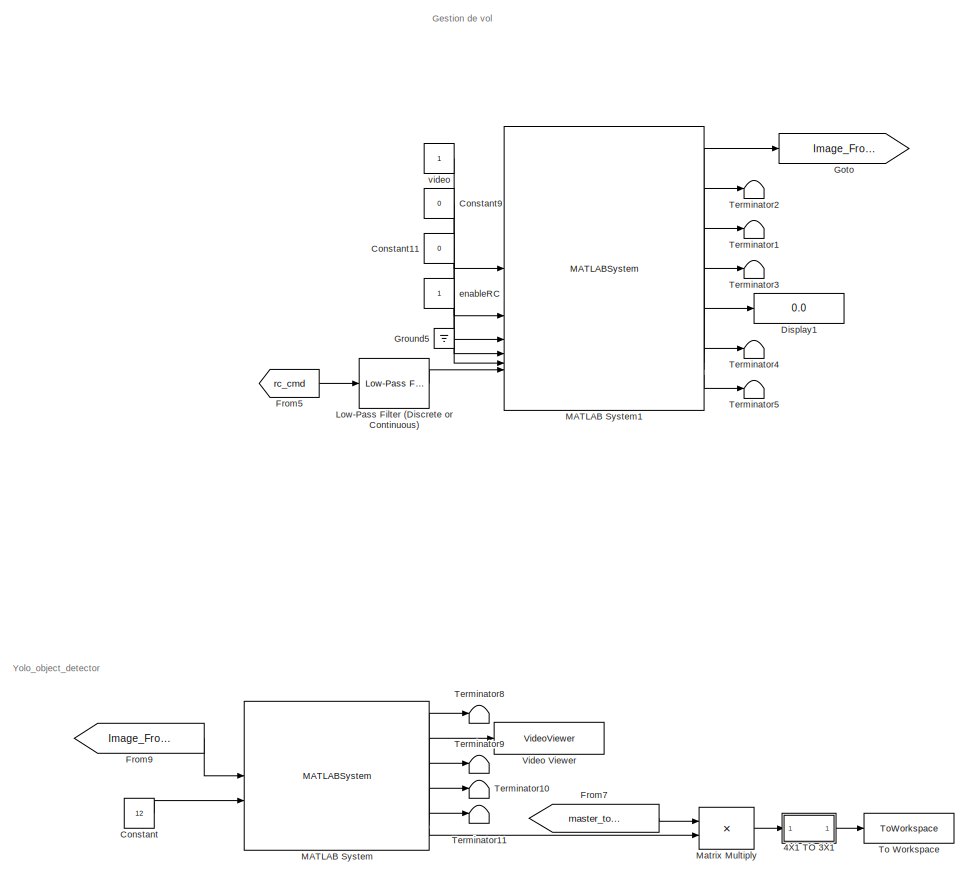
[diagram: root canvas - part 1/7, top center region]
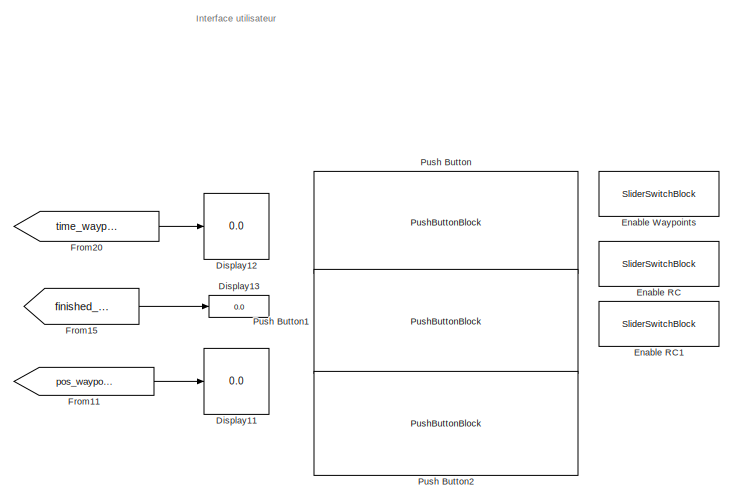
[diagram: root canvas - part 2/7, top left region]
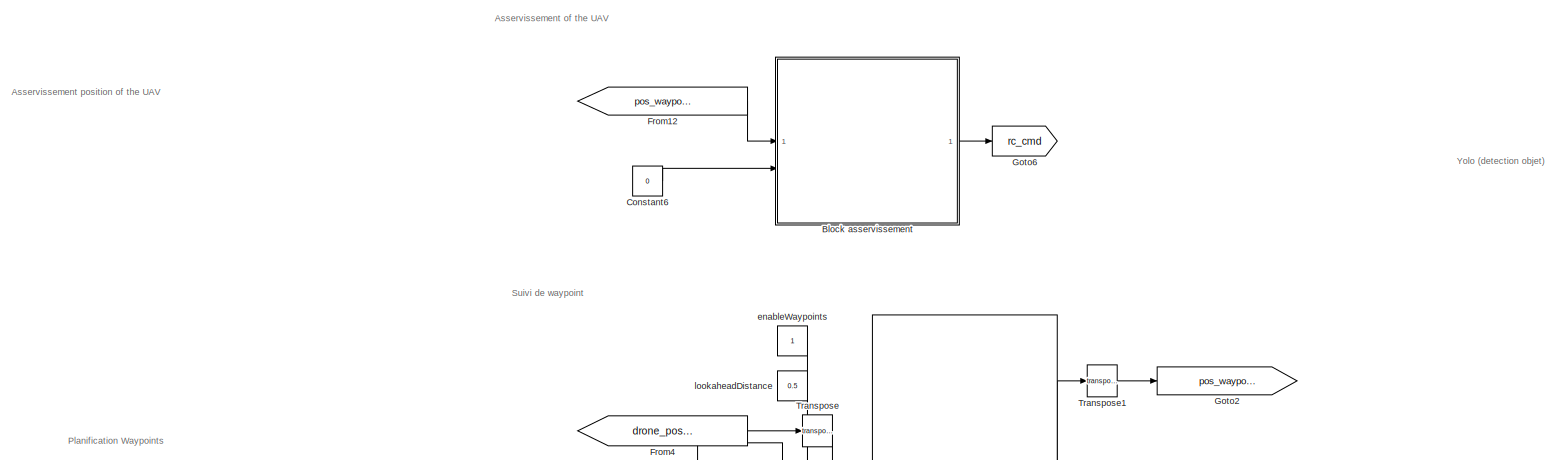
[diagram: root canvas - part 3/7, middle left region]
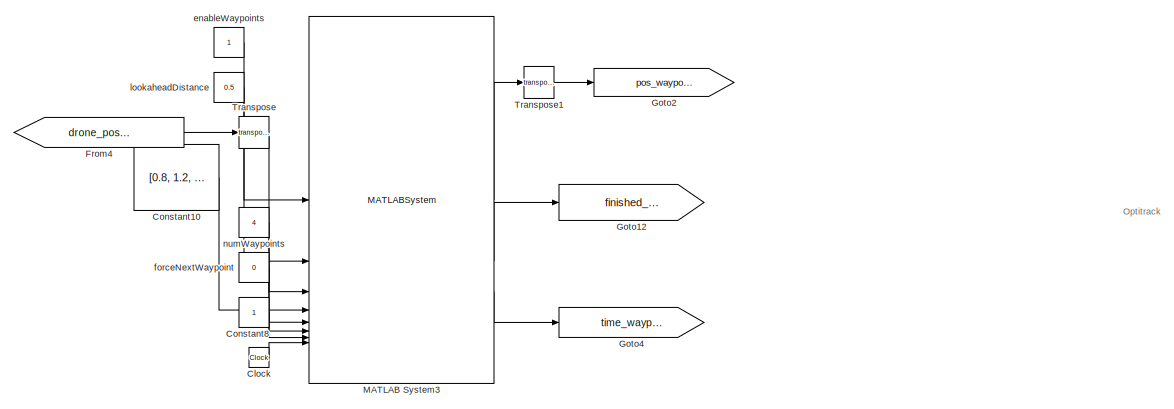
[diagram: root canvas - part 4/7, middle left region]
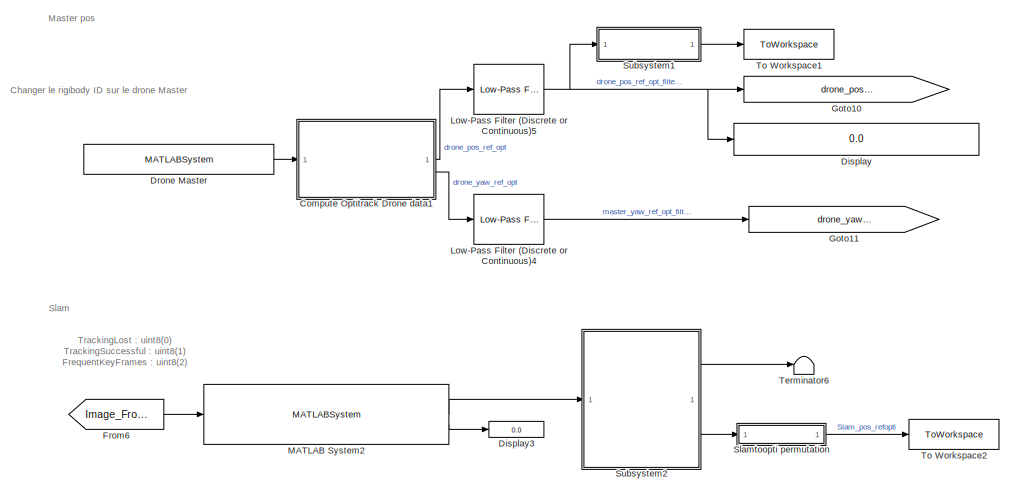
[diagram: root canvas - part 5/7, bottom center region]
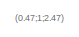
[diagram: root canvas - part 6/7, bottom right region]
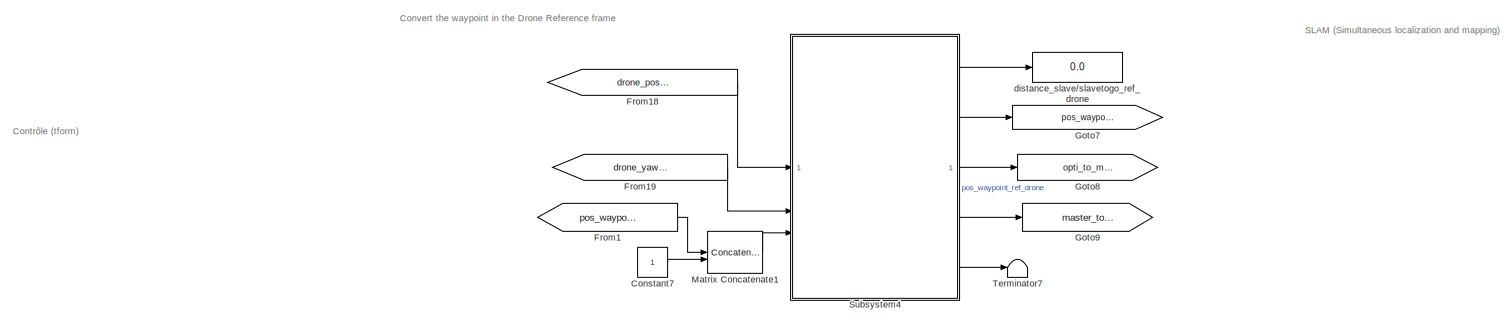
[diagram: root canvas - part 7/7, bottom left region]
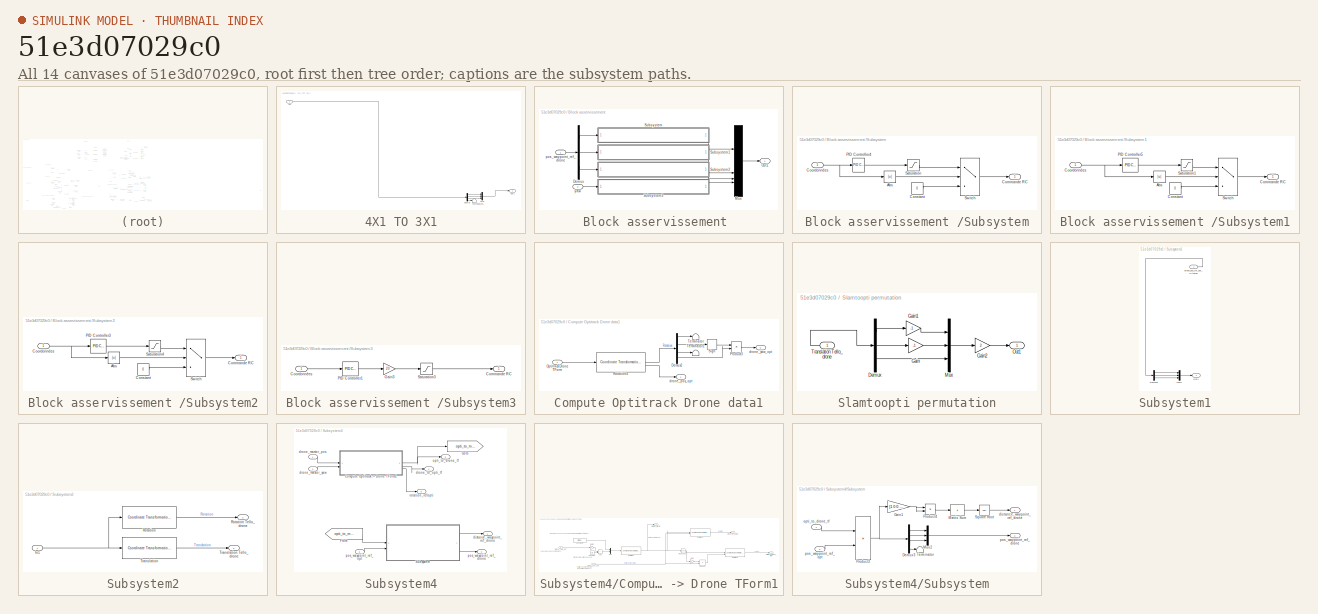
[diagram: thumbnail index - all 14 canvases of the model, root first then tree order]
MODEL slx_51e3d07029c0
KIND model
CONFIG AbsTol = auto
CONFIG EnableMultiTasking = off
CONFIG FixedStep = auto
CONFIG MaxStep = auto
CONFIG MinStep = auto
CONFIG RelTol = 1e-3
CONFIG SampleTimeConstraint = Unconstrained
CONFIG SolverName = VariableStepAuto
CONFIG StartTime = 0.0
CONFIG StopTime = inf
BLOCK [SubSystem] 4X1 TO 3X1
BLOCK [Demux] 4X1 TO 3X1/Demux
BLOCK [Inport] 4X1 TO 3X1/In1
BLOCK [Mux] 4X1 TO 3X1/Mux
  DisplayOption = bar
  Inputs = 3
BLOCK [Outport] 4X1 TO 3X1/Out1
BLOCK [Terminator] 4X1 TO 3X1/Terminator6
BLOCK [SubSystem] Block asservissement 
BLOCK [Demux] Block asservissement /Demux
  Outputs = 3
BLOCK [Mux] Block asservissement /Mux
  DisplayOption = bar
BLOCK [Outport] Block asservissement /Out1
BLOCK [SubSystem] Block asservissement /Subsystem
BLOCK [Abs] Block asservissement /Subsystem/Abs
  SaturateOnIntegerOverflow = off
BLOCK [Outport] Block asservissement /Subsystem/Commande RC
BLOCK [Constant] Block asservissement /Subsystem/Constant
  Value = 0
BLOCK [Inport] Block asservissement /Subsystem/Coordonnées
BLOCK [Reference] Block asservissement /Subsystem/PID Controller4  REF=slpidlib/PID Controller
  LibrarySourceBlock = simulink/Continuous/PID Controller
  SourceBlock = slpidlib/PID Controller
  SourceType = PID 1dof
BLOCK [Saturate] Block asservissement /Subsystem/Saturation
  LowerLimit = -20
  UpperLimit = 20
BLOCK [Switch] Block asservissement /Subsystem/Switch
  Criteria = u2 > Threshold
  InputSameDT = off
  SaturateOnIntegerOverflow = off
  Threshold = 0.1
BLOCK [SubSystem] Block asservissement /Subsystem1
BLOCK [Abs] Block asservissement /Subsystem1/Abs
  SaturateOnIntegerOverflow = off
BLOCK [Outport] Block asservissement /Subsystem1/Commande RC
BLOCK [Constant] Block asservissement /Subsystem1/Constant
  Value = 0
BLOCK [Inport] Block asservissement /Subsystem1/Coordonnées
BLOCK [Reference] Block asservissement /Subsystem1/PID Controller5  REF=slpidlib/PID Controller
  LibrarySourceBlock = simulink/Continuous/PID Controller
  SourceBlock = slpidlib/PID Controller
  SourceType = PID 1dof
BLOCK [Saturate] Block asservissement /Subsystem1/Saturation1
  LowerLimit = -20
  UpperLimit = 20
BLOCK [Switch] Block asservissement /Subsystem1/Switch
  Criteria = u2 > Threshold
  InputSameDT = off
  SaturateOnIntegerOverflow = off
  Threshold = 0.1
BLOCK [SubSystem] Block asservissement /Subsystem2
BLOCK [Abs] Block asservissement /Subsystem2/Abs
  SaturateOnIntegerOverflow = off
BLOCK [Outport] Block asservissement /Subsystem2/Commande RC
BLOCK [Constant] Block asservissement /Subsystem2/Constant
  Value = 0
BLOCK [Inport] Block asservissement /Subsystem2/Coordonnées
BLOCK [Reference] Block asservissement /Subsystem2/PID Controller3  REF=slpidlib/PID Controller
  LibrarySourceBlock = simulink/Continuous/PID Controller
  SourceBlock = slpidlib/PID Controller
  SourceType = PID 1dof
BLOCK [Saturate] Block asservissement /Subsystem2/Saturation4
  LowerLimit = -20
  UpperLimit = 20
BLOCK [Switch] Block asservissement /Subsystem2/Switch
  Criteria = u2 > Threshold
  InputSameDT = off
  SaturateOnIntegerOverflow = off
  Threshold = 0.1
BLOCK [SubSystem] Block asservissement /Subsystem3
BLOCK [Outport] Block asservissement /Subsystem3/Commande RC
BLOCK [Inport] Block asservissement /Subsystem3/Coordonnées
BLOCK [Gain] Block asservissement /Subsystem3/Gain3
  Gain = 20
BLOCK [Reference] Block asservissement /Subsystem3/PID Controller1  REF=slpidlib/PID Controller
  LibrarySourceBlock = simulink/Continuous/PID Controller
  SourceBlock = slpidlib/PID Controller
  SourceType = PID 1dof
BLOCK [Saturate] Block asservissement /Subsystem3/Saturation3
  LowerLimit = -50
  UpperLimit = 50
BLOCK [Inport] Block asservissement /pos_waypoint_ref_drone
BLOCK [Inport] Block asservissement /yaw
  Port = 2
BLOCK [Clock] Clock
BLOCK [SubSystem] Compute Optitrack Drone data1
BLOCK [Demux] Compute Optitrack Drone data1/Demux2
BLOCK [Inport] Compute Optitrack Drone data1/Optitrack Drone TForm
BLOCK [Product] Compute Optitrack Drone data1/Product3
BLOCK [Reference] Compute Optitrack Drone data1/Rotation4  REF=robotcorelib/Coordinate Transformation Conversion
  LibrarySourceBlock = uavutilslib/Coordinate Transformation Conversion
  SourceBlock = robotcorelib/Coordinate Transformation Conversion
  SourceType = robotics.slcore.internal.block.CoordinateTransformationConversion
BLOCK [Signum] Compute Optitrack Drone data1/Sign
BLOCK [Terminator] Compute Optitrack Drone data1/Terminator
BLOCK [Terminator] Compute Optitrack Drone data1/Terminator1
BLOCK [Outport] Compute Optitrack Drone data1/drone_pos_opt
BLOCK [Outport] Compute Optitrack Drone data1/drone_yaw_opt
  Port = 2
BLOCK [Constant] Constant
  Value = 12
BLOCK [Constant] Constant10
  Value = [0.8, 1.2, 0; 0,  1.2 ,0; -0.8 , 1.2 , 0; 0, 1.2,0]
BLOCK [Constant] Constant11
  Value = 0
BLOCK [Constant] Constant6
  Value = 0
BLOCK [Constant] Constant7
BLOCK [Constant] Constant8
BLOCK [Constant] Constant9
  Value = 0
BLOCK [Display] Display
  Decimation = 1
BLOCK [Display] Display1
  Decimation = 1
BLOCK [Display] Display11
  Decimation = 1
BLOCK [Display] Display12
  Decimation = 1
BLOCK [Display] Display13
  Decimation = 1
BLOCK [Display] Display3
  Decimation = 1
BLOCK [MATLABSystem] Drone Master
  ClientIP = 10.147.125.15
  HostIP = 10.147.125.15
  MaskDisplay = disp('OptilinkSystem');\nport_label('output',1,'Drones data');
  MaskType = OptilinkSystem
  RigidbodyID = 1
  SimulateUsing = Interpreted execution
  System = OptilinkSystem
BLOCK [SliderSwitchBlock] Enable RC
BLOCK [SliderSwitchBlock] Enable RC1
BLOCK [SliderSwitchBlock] Enable Waypoints
BLOCK [From] From1
  GotoTag = pos_waypoint_ref_opt
BLOCK [From] From11
  GotoTag = pos_waypoint_ref_opt
BLOCK [From] From12
  GotoTag = pos_waypoint_ref_drone
BLOCK [From] From15
  GotoTag = finished_waypoint
BLOCK [From] From18
  GotoTag = drone_pos_master_opt_filtered
BLOCK [From] From19
  GotoTag = drone_yaw_master_opt_filtered
BLOCK [From] From20
  GotoTag = time_waypoint
BLOCK [From] From4
  GotoTag = drone_pos_master_opt_filtered
BLOCK [From] From5
  GotoTag = rc_cmd
BLOCK [From] From6
  GotoTag = Image_Front
BLOCK [From] From7
  GotoTag = master_to_opti_tf
BLOCK [From] From9
  GotoTag = Image_Front
BLOCK [Goto] Goto
  GotoTag = Image_Front
BLOCK [Goto] Goto10
  GotoTag = drone_pos_master_opt_filtered
BLOCK [Goto] Goto11
  GotoTag = drone_yaw_master_opt_filtered
BLOCK [Goto] Goto12
  GotoTag = finished_waypoint
BLOCK [Goto] Goto2
  GotoTag = pos_waypoint_ref_opt
BLOCK [Goto] Goto4
  GotoTag = time_waypoint
BLOCK [Goto] Goto6
  GotoTag = rc_cmd
BLOCK [Goto] Goto7
  GotoTag = pos_waypoint_ref_drone
BLOCK [Goto] Goto8
  GotoTag = opti_to_master_tf
BLOCK [Goto] Goto9
  GotoTag = master_to_opti_tf
BLOCK [Ground] Ground5
BLOCK [Reference] Low-Pass Filter (Discrete or Continuous)  REF=eeGeneralControl/Low-Pass Filter
(Discrete or Continuous)
  LibrarySourceBlock = ee_sl_lib/General Control/Low-Pass Filter\n(Discrete or Continuous)
  SourceBlock = eeGeneralControl/Low-Pass Filter\n(Discrete or Continuous)
  SourceType = Low-Pass Filter (Discrete or Continuous)
BLOCK [Reference] Low-Pass Filter (Discrete or Continuous)4  REF=eeGeneralControl/Low-Pass Filter
(Discrete or Continuous)
  LibrarySourceBlock = ee_sl_lib/General Control/Low-Pass Filter\n(Discrete or Continuous)
  SourceBlock = eeGeneralControl/Low-Pass Filter\n(Discrete or Continuous)
  SourceType = Low-Pass Filter (Discrete or Continuous)
BLOCK [Reference] Low-Pass Filter (Discrete or Continuous)5  REF=eeGeneralControl/Low-Pass Filter
(Discrete or Continuous)
  LibrarySourceBlock = ee_sl_lib/General Control/Low-Pass Filter\n(Discrete or Continuous)
  SourceBlock = eeGeneralControl/Low-Pass Filter\n(Discrete or Continuous)
  SourceType = Low-Pass Filter (Discrete or Continuous)
BLOCK [MATLABSystem] MATLAB System
  MaskDisplay = disp('Yolo_Object_Detector');\nport_label('input',1,'Image');\nport_label('input',2,'degreecam');\nport_label('output',1,'Tform_camtodrone');\nport_label('output',2,'AnnotatedImage');\nport_label('output',3,'BBoxDimensions');\nport_label('output',4,'CamCoordinates');\nport_label('output',5,'posecam');\nport_label('output',6,'posecamtodrone');
  MaskType = Yolo_Object_Detector
  SimulateUsing = Interpreted execution
  System = Yolo_Object_Detector
BLOCK [MATLABSystem] MATLAB System1
  MaskDisplay = disp('Tello_drone_control');\nport_label('input',1,'enableVideo');\nport_label('input',2,'tkoff');\nport_label('input',3,'landing');\nport_label('input',4,'enableRC');\nport_label('input',5,'cmdVideoDirection');\nport_label('input',6,'rcspeeds');\nport_label('output',1,'imageFront');\nport_label('output',2,'imageDown');\nport_label('output',3,'Eulerangles');\nport_label('output',4,'speedXYZ');\nport_label('o...<+117ch>
  MaskType = Tello_drone_control
  SimulateUsing = Interpreted execution
  System = Tello_drone_control
  droneIP = 127.0.0.1
BLOCK [MATLABSystem] MATLAB System2
  FocalLength = [ 894, 896]
  ImageSize = [ 720, 960 ]
  MaskDisplay = disp('MonoVisualSLAMSystem');\nport_label('input',1,'Image');\nport_label('output',1,'Camera Pose');\nport_label('output',2,'Tracking Lost');
  MaskType = MonoVisualSLAMSystem
  PrincipalPoint = [490,355.6]
  SimulateUsing = Code generation
  System = MonoVisualSLAMSystem
  numPoints = 800
  numSkipFrames = 15
BLOCK [MATLABSystem] MATLAB System3
  MaskDisplay = disp('WaypointManager');\nport_label('input',1,'enable');\nport_label('input',2,'lookaheadDistance');\nport_label('input',3,'currentPos');\nport_label('input',4,'waypoints');\nport_label('input',5,'numWaypoints');\nport_label('input',6,'forceNextWaypoint');\nport_label('input',7,'requiredTime');\nport_label('input',8,'time');\nport_label('output',1,'waypoint');\nport_label('output',2,'finished');\nport_label...<+35ch>
  MaskType = WaypointManager
  SimulateUsing = Code generation
  System = WaypointManager
BLOCK [Concatenate] Matrix Concatenate1
  ConcatenateDimension = 2
BLOCK [Product] Matrix Multiply
  Multiplication = Matrix(*)
BLOCK [PushButtonBlock] Push Button
  ButtonText = Décoler
  OffValue = 0.000000
BLOCK [PushButtonBlock] Push Button1
  ButtonText = Atterir
  OffValue = 0.000000
BLOCK [PushButtonBlock] Push Button2
  ButtonText = Next waypoint
  OffValue = 0.000000
BLOCK [SubSystem] Slamtoopti permutation
BLOCK [Demux] Slamtoopti permutation/Demux
  Outputs = 3
BLOCK [Gain] Slamtoopti permutation/Gain
  Gain = -1
BLOCK [Gain] Slamtoopti permutation/Gain1
  Gain = -1
BLOCK [Gain] Slamtoopti permutation/Gain2
  Gain = 2
BLOCK [Mux] Slamtoopti permutation/Mux
  DisplayOption = bar
  Inputs = 3
BLOCK [Outport] Slamtoopti permutation/Out1
BLOCK [Inport] Slamtoopti permutation/Translation Tello_drone
BLOCK [SubSystem] Subsystem1
BLOCK [Demux] Subsystem1/Demux1
  Outputs = 3
BLOCK [Mux] Subsystem1/Mux1
  DisplayOption = bar
  Inputs = 3
BLOCK [Outport] Subsystem1/Out1
BLOCK [Inport] Subsystem1/drone_pos_ref_opt_filtered
BLOCK [SubSystem] Subsystem2
BLOCK [Inport] Subsystem2/In1
BLOCK [Reference] Subsystem2/Rotation  REF=robotcorelib/Coordinate Transformation Conversion
  LibrarySourceBlock = uavutilslib/Coordinate Transformation Conversion
  SourceBlock = robotcorelib/Coordinate Transformation Conversion
  SourceType = robotics.slcore.internal.block.CoordinateTransformationConversion
BLOCK [Outport] Subsystem2/Rotation Tello_drone
BLOCK [Reference] Subsystem2/Translation  REF=robotcorelib/Coordinate Transformation Conversion
  LibrarySourceBlock = uavutilslib/Coordinate Transformation Conversion
  SourceBlock = robotcorelib/Coordinate Transformation Conversion
  SourceType = robotics.slcore.internal.block.CoordinateTransformationConversion
BLOCK [Outport] Subsystem2/Translation Tello_drone
  Port = 2
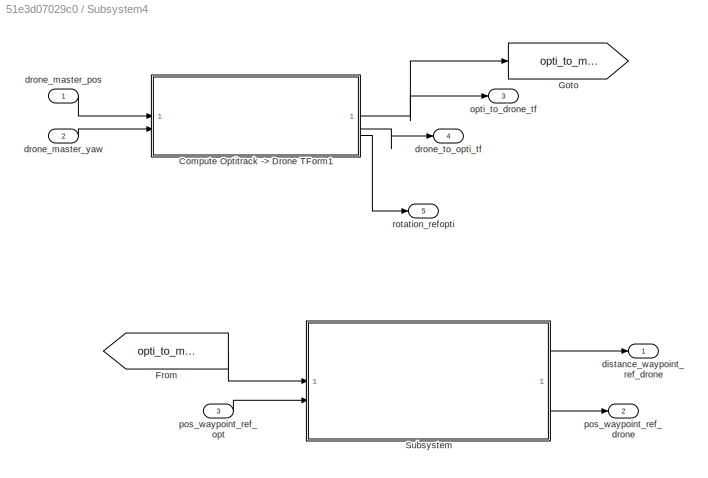
BLOCK [SubSystem] Subsystem4
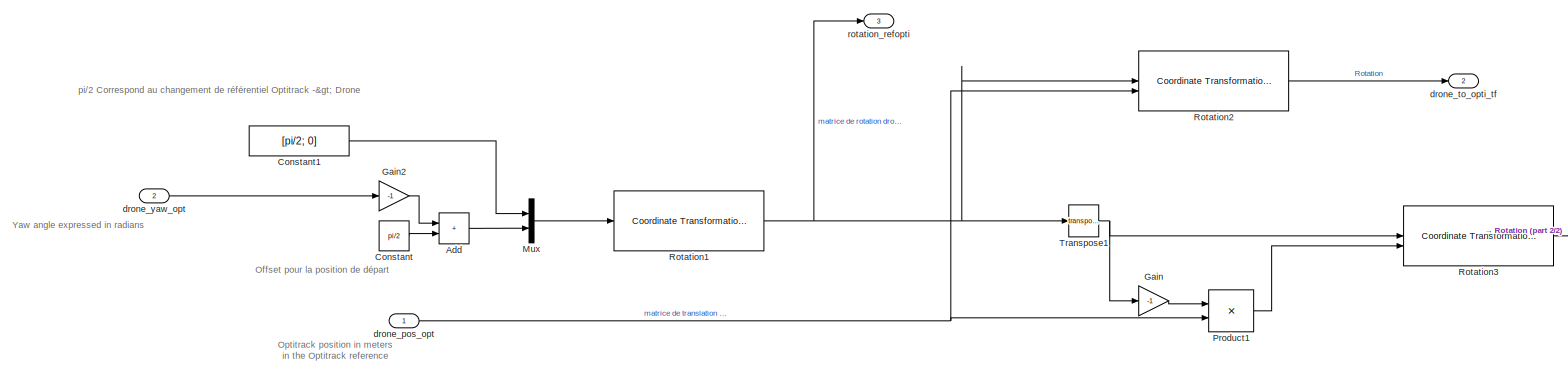
[diagram: Subsystem4/Compute Optitrack -> Drone TForm1 - part 1/2, most of the canvas]
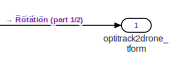
[diagram: Subsystem4/Compute Optitrack -> Drone TForm1 - part 2/2, middle right region]
BLOCK [SubSystem] Subsystem4/Compute Optitrack -> Drone TForm1
BLOCK [Sum] Subsystem4/Compute Optitrack -> Drone TForm1/Add
  IconShape = rectangular
BLOCK [Constant] Subsystem4/Compute Optitrack -> Drone TForm1/Constant
  Value = pi/2
BLOCK [Constant] Subsystem4/Compute Optitrack -> Drone TForm1/Constant1
  Value = [pi/2; 0]
BLOCK [Gain] Subsystem4/Compute Optitrack -> Drone TForm1/Gain
  Gain = -1
BLOCK [Gain] Subsystem4/Compute Optitrack -> Drone TForm1/Gain2
  Gain = -1
BLOCK [Mux] Subsystem4/Compute Optitrack -> Drone TForm1/Mux
  DisplayOption = bar
  Inputs = 2
BLOCK [Product] Subsystem4/Compute Optitrack -> Drone TForm1/Product1
  Multiplication = Matrix(*)
BLOCK [Reference] Subsystem4/Compute Optitrack -> Drone TForm1/Rotation1  REF=robotcorelib/Coordinate Transformation Conversion
  LibrarySourceBlock = uavutilslib/Coordinate Transformation Conversion
  SourceBlock = robotcorelib/Coordinate Transformation Conversion
  SourceType = robotics.slcore.internal.block.CoordinateTransformationConversion
BLOCK [Reference] Subsystem4/Compute Optitrack -> Drone TForm1/Rotation2  REF=robotcorelib/Coordinate Transformation Conversion
  LibrarySourceBlock = uavutilslib/Coordinate Transformation Conversion
  SourceBlock = robotcorelib/Coordinate Transformation Conversion
  SourceType = robotics.slcore.internal.block.CoordinateTransformationConversion
BLOCK [Reference] Subsystem4/Compute Optitrack -> Drone TForm1/Rotation3  REF=robotcorelib/Coordinate Transformation Conversion
  LibrarySourceBlock = uavutilslib/Coordinate Transformation Conversion
  SourceBlock = robotcorelib/Coordinate Transformation Conversion
  SourceType = robotics.slcore.internal.block.CoordinateTransformationConversion
BLOCK [Math] Subsystem4/Compute Optitrack -> Drone TForm1/Transpose1
  Operator = transpose
BLOCK [Inport] Subsystem4/Compute Optitrack -> Drone TForm1/drone_pos_opt
BLOCK [Outport] Subsystem4/Compute Optitrack -> Drone TForm1/drone_to_opti_tf
  Port = 2
BLOCK [Inport] Subsystem4/Compute Optitrack -> Drone TForm1/drone_yaw_opt
  Port = 2
BLOCK [Outport] Subsystem4/Compute Optitrack -> Drone TForm1/optitrack2drone_tform
BLOCK [Outport] Subsystem4/Compute Optitrack -> Drone TForm1/rotation_refopti
  Port = 3
BLOCK [From] Subsystem4/From
  GotoTag = opti_to_master_tf
BLOCK [Goto] Subsystem4/Goto
  GotoTag = opti_to_master_tf
BLOCK [SubSystem] Subsystem4/Subsystem
BLOCK [Demux] Subsystem4/Subsystem/Demux3
BLOCK [Gain] Subsystem4/Subsystem/Gain1
  Gain = [1 0 0 0; 0 1 0 0; 0 0 0 0; 0 0 0 0]
  Multiplication = Matrix(K*u)
BLOCK [Sum] Subsystem4/Subsystem/Matrix Sum
  IconShape = rectangular
  Inputs = +
BLOCK [Mux] Subsystem4/Subsystem/Mux2
  DisplayOption = bar
  Inputs = 3
BLOCK [Product] Subsystem4/Subsystem/Product2
  Multiplication = Matrix(*)
BLOCK [Product] Subsystem4/Subsystem/Product4
BLOCK [Sqrt] Subsystem4/Subsystem/Square Root
BLOCK [Terminator] Subsystem4/Subsystem/Terminator
BLOCK [Outport] Subsystem4/Subsystem/distance_waypoint_ref_drone
BLOCK [Inport] Subsystem4/Subsystem/opti_to_drone_tf
BLOCK [Outport] Subsystem4/Subsystem/pos_waypoint_ref_drone
  Port = 2
BLOCK [Inport] Subsystem4/Subsystem/pos_waypoint_ref_opt
  Port = 2
BLOCK [Outport] Subsystem4/distance_waypoint_ref_drone
BLOCK [Inport] Subsystem4/drone_master_pos
BLOCK [Inport] Subsystem4/drone_master_yaw
  Port = 2
BLOCK [Outport] Subsystem4/drone_to_opti_tf
  Port = 4
BLOCK [Outport] Subsystem4/opti_to_drone_tf
  Port = 3
BLOCK [Outport] Subsystem4/pos_waypoint_ref_drone
  Port = 2
BLOCK [Inport] Subsystem4/pos_waypoint_ref_opt
  Port = 3
BLOCK [Outport] Subsystem4/rotation_refopti
  Port = 5
BLOCK [Terminator] Terminator1
BLOCK [Terminator] Terminator10
BLOCK [Terminator] Terminator11
BLOCK [Terminator] Terminator2
BLOCK [Terminator] Terminator3
BLOCK [Terminator] Terminator4
BLOCK [Terminator] Terminator5
BLOCK [Terminator] Terminator6
BLOCK [Terminator] Terminator7
BLOCK [Terminator] Terminator8
BLOCK [Terminator] Terminator9
BLOCK [ToWorkspace] To Workspace
  FixptAsFi = on
  MaxDataPoints = inf
  SampleTime = -1
  VariableName = objectPositions
BLOCK [ToWorkspace] To Workspace1
  FixptAsFi = on
  MaxDataPoints = inf
  SampleTime = -1
  VariableName = groundtruthopti
BLOCK [ToWorkspace] To Workspace2
  FixptAsFi = on
  MaxDataPoints = inf
  SampleTime = -1
  VariableName = droneSlamPositions
BLOCK [Math] Transpose
  Operator = transpose
BLOCK [Math] Transpose1
  Operator = transpose
BLOCK [VideoViewer] Video Viewer
  FigPos = [19 828 894 700]
  ScopeSpecificationString = vipscopes.VideoViewerScopeCfg('CurrentConfiguration', extmgr.ConfigurationSet(extmgr.Configuration('Core','General UI',true),extmgr.Configuration('Core','Source UI',true),extmgr.Configuration('Sources','WiredSimulink',true),extmgr.Configuration('Sources','SimulinkEvent',false),extmgr.Configuration('Sources','Simulink',false),extmgr.Configuration('Sources','File',false),extmgr.Configuration('Source...<+1619ch>
  colormapValue = gray(256)
BLOCK [Display] distance_slave//slavetogo_ref_drone
  Decimation = 1
BLOCK [Constant] enableRC
BLOCK [Constant] enableWaypoints
BLOCK [Constant] forceNextWaypoint
  Value = 0
BLOCK [Constant] lookaheadDistance
  Value = 0.5
BLOCK [Constant] numWaypoints
  Value = 4
BLOCK [Constant] video
ANNOTATION (root): (0.47;1;2.47)
ANNOTATION (root): Asservissement position of the UAV
ANNOTATION (root): Contrôle (tform)
ANNOTATION (root): Gestion de vol
ANNOTATION (root): Interface utilisateur
ANNOTATION (root): Optitrack
ANNOTATION (root): Planification Waypoints
ANNOTATION (root): SLAM (Simultaneous localization and mapping)
ANNOTATION (root): Yolo (detection objet)
ANNOTATION (root): Asservissement of the UAV
ANNOTATION (root): Changer le rigibody ID sur le drone Master
ANNOTATION (root): Convert the waypoint in the Drone Reference frame
ANNOTATION (root): Master pos
ANNOTATION (root): Slam
ANNOTATION (root): Suivi de waypoint
ANNOTATION (root): TrackingLost : uint8(0) TrackingSuccessful : uint8(1) FrequentKeyFrames : uint8(2)
ANNOTATION (root): Yolo_object_detector
ANNOTATION Subsystem4/Compute Optitrack -> Drone TForm1: pi/2 Correspond au changement de référentiel Optitrack -> Drone
ANNOTATION Subsystem4/Compute Optitrack -> Drone TForm1: Optitrack position in meters in the Optitrack reference
ANNOTATION Subsystem4/Compute Optitrack -> Drone TForm1: Yaw angle expressed in radians
ANNOTATION Subsystem4/Compute Optitrack -> Drone TForm1: Offset pour la position de départ
LINE 4X1 TO 3X1/Demux:1 -> 4X1 TO 3X1/Mux:1
LINE 4X1 TO 3X1/Demux:2 -> 4X1 TO 3X1/Mux:2
LINE 4X1 TO 3X1/Demux:3 -> 4X1 TO 3X1/Mux:3
LINE 4X1 TO 3X1/Demux:4 -> 4X1 TO 3X1/Terminator6:1
LINE 4X1 TO 3X1/In1:1 -> 4X1 TO 3X1/Demux:1
LINE 4X1 TO 3X1/Mux:1 -> 4X1 TO 3X1/Out1:1
LINE 4X1 TO 3X1:1 -> To Workspace:1
LINE Block asservissement /Demux:1 -> Block asservissement /Subsystem:1
LINE Block asservissement /Demux:2 -> Block asservissement /Subsystem1:1
LINE Block asservissement /Demux:3 -> Block asservissement /Subsystem2:1
LINE Block asservissement /Mux:1 -> Block asservissement /Out1:1
LINE Block asservissement /Subsystem/Abs:1 -> Block asservissement /Subsystem/Switch:2
LINE Block asservissement /Subsystem/Constant:1 -> Block asservissement /Subsystem/Switch:3
NET Block asservissement /Subsystem/Coordonnées:1 -> Block asservissement /Subsystem/Abs:1, Block asservissement /Subsystem/PID Controller4:1
LINE Block asservissement /Subsystem/PID Controller4:1 -> Block asservissement /Subsystem/Saturation:1
LINE Block asservissement /Subsystem/Saturation:1 -> Block asservissement /Subsystem/Switch:1
LINE Block asservissement /Subsystem/Switch:1 -> Block asservissement /Subsystem/Commande RC:1
LINE Block asservissement /Subsystem1/Abs:1 -> Block asservissement /Subsystem1/Switch:2
LINE Block asservissement /Subsystem1/Constant:1 -> Block asservissement /Subsystem1/Switch:3
NET Block asservissement /Subsystem1/Coordonnées:1 -> Block asservissement /Subsystem1/Abs:1, Block asservissement /Subsystem1/PID Controller5:1
LINE Block asservissement /Subsystem1/PID Controller5:1 -> Block asservissement /Subsystem1/Saturation1:1
LINE Block asservissement /Subsystem1/Saturation1:1 -> Block asservissement /Subsystem1/Switch:1
LINE Block asservissement /Subsystem1/Switch:1 -> Block asservissement /Subsystem1/Commande RC:1
LINE Block asservissement /Subsystem1:1 -> Block asservissement /Mux:2
LINE Block asservissement /Subsystem2/Abs:1 -> Block asservissement /Subsystem2/Switch:2
LINE Block asservissement /Subsystem2/Constant:1 -> Block asservissement /Subsystem2/Switch:3
NET Block asservissement /Subsystem2/Coordonnées:1 -> Block asservissement /Subsystem2/Abs:1, Block asservissement /Subsystem2/PID Controller3:1
LINE Block asservissement /Subsystem2/PID Controller3:1 -> Block asservissement /Subsystem2/Saturation4:1
LINE Block asservissement /Subsystem2/Saturation4:1 -> Block asservissement /Subsystem2/Switch:1
LINE Block asservissement /Subsystem2/Switch:1 -> Block asservissement /Subsystem2/Commande RC:1
LINE Block asservissement /Subsystem2:1 -> Block asservissement /Mux:3
LINE Block asservissement /Subsystem3/Coordonnées:1 -> Block asservissement /Subsystem3/PID Controller1:1
LINE Block asservissement /Subsystem3/Gain3:1 -> Block asservissement /Subsystem3/Saturation3:1
LINE Block asservissement /Subsystem3/PID Controller1:1 -> Block asservissement /Subsystem3/Gain3:1
LINE Block asservissement /Subsystem3/Saturation3:1 -> Block asservissement /Subsystem3/Commande RC:1
LINE Block asservissement /Subsystem3:1 -> Block asservissement /Mux:4
LINE Block asservissement /Subsystem:1 -> Block asservissement /Mux:1
LINE Block asservissement /pos_waypoint_ref_drone:1 -> Block asservissement /Demux:1
LINE Block asservissement /yaw:1 -> Block asservissement /Subsystem3:1
LINE Block asservissement :1 -> Goto6:1
LINE Clock:1 -> MATLAB System3:8
LINE Compute Optitrack Drone data1/Demux2:1 -> Compute Optitrack Drone data1/Terminator:1
LINE Compute Optitrack Drone data1/Demux2:2 -> Compute Optitrack Drone data1/Sign:1
LINE Compute Optitrack Drone data1/Demux2:3 -> Compute Optitrack Drone data1/Terminator1:1
LINE Compute Optitrack Drone data1/Demux2:4 -> Compute Optitrack Drone data1/Product3:2
LINE Compute Optitrack Drone data1/Optitrack Drone TForm:1 -> Compute Optitrack Drone data1/Rotation4:1
LINE Compute Optitrack Drone data1/Product3:1 -> Compute Optitrack Drone data1/drone_yaw_opt:1
LINE Compute Optitrack Drone data1/Rotation4:1 -> Compute Optitrack Drone data1/Demux2:1
LINE Compute Optitrack Drone data1/Rotation4:2 -> Compute Optitrack Drone data1/drone_pos_opt:1
LINE Compute Optitrack Drone data1/Sign:1 -> Compute Optitrack Drone data1/Product3:1
LINE Compute Optitrack Drone data1:1 -> Low-Pass Filter (Discrete or Continuous)5:1
LINE Compute Optitrack Drone data1:2 -> Low-Pass Filter (Discrete or Continuous)4:1
LINE Constant10:1 -> MATLAB System3:4
LINE Constant11:1 -> MATLAB System1:3
LINE Constant6:1 -> Block asservissement :2
LINE Constant7:1 -> Matrix Concatenate1:2
LINE Constant8:1 -> MATLAB System3:7
LINE Constant9:1 -> MATLAB System1:2
LINE Constant:1 -> MATLAB System:2
LINE Drone Master:1 -> Compute Optitrack Drone data1:1
LINE From11:1 -> Display11:1
LINE From12:1 -> Block asservissement :1
LINE From15:1 -> Display13:1
LINE From18:1 -> Subsystem4:1
LINE From19:1 -> Subsystem4:2
LINE From1:1 -> Matrix Concatenate1:1
LINE From20:1 -> Display12:1
LINE From4:1 -> Transpose:1
LINE From5:1 -> Low-Pass Filter (Discrete or Continuous):1
LINE From6:1 -> MATLAB System2:1
LINE From7:1 -> Matrix Multiply:1
LINE From9:1 -> MATLAB System:1
LINE Ground5:1 -> MATLAB System1:5
LINE Low-Pass Filter (Discrete or Continuous)4:1 -> Goto11:1
NET Low-Pass Filter (Discrete or Continuous)5:1 -> Display:1, Goto10:1, Subsystem1:1
LINE Low-Pass Filter (Discrete or Continuous):1 -> MATLAB System1:6
LINE MATLAB System1:1 -> Goto:1
LINE MATLAB System1:2 -> Terminator2:1
LINE MATLAB System1:3 -> Terminator1:1
LINE MATLAB System1:4 -> Terminator3:1
LINE MATLAB System1:5 -> Display1:1
LINE MATLAB System1:6 -> Terminator4:1
LINE MATLAB System1:7 -> Terminator5:1
LINE MATLAB System2:1 -> Subsystem2:1
LINE MATLAB System2:2 -> Display3:1
LINE MATLAB System3:1 -> Transpose1:1
LINE MATLAB System3:2 -> Goto12:1
LINE MATLAB System3:3 -> Goto4:1
LINE MATLAB System:1 -> Terminator8:1
LINE MATLAB System:2 -> Video Viewer:1
LINE MATLAB System:3 -> Terminator9:1
LINE MATLAB System:4 -> Terminator10:1
LINE MATLAB System:5 -> Terminator11:1
LINE MATLAB System:6 -> Matrix Multiply:2
LINE Matrix Concatenate1:1 -> Subsystem4:3
LINE Matrix Multiply:1 -> 4X1 TO 3X1:1
LINE Slamtoopti permutation/Demux:1 -> Slamtoopti permutation/Gain1:1
LINE Slamtoopti permutation/Demux:2 -> Slamtoopti permutation/Gain:1
LINE Slamtoopti permutation/Demux:3 -> Slamtoopti permutation/Mux:3
LINE Slamtoopti permutation/Gain1:1 -> Slamtoopti permutation/Mux:1
LINE Slamtoopti permutation/Gain2:1 -> Slamtoopti permutation/Out1:1
LINE Slamtoopti permutation/Gain:1 -> Slamtoopti permutation/Mux:2
LINE Slamtoopti permutation/Mux:1 -> Slamtoopti permutation/Gain2:1
LINE Slamtoopti permutation/Translation Tello_drone:1 -> Slamtoopti permutation/Demux:1
LINE Slamtoopti permutation:1 -> To Workspace2:1
LINE Subsystem1/Demux1:1 -> Subsystem1/Mux1:1
LINE Subsystem1/Demux1:2 -> Subsystem1/Mux1:2
LINE Subsystem1/Demux1:3 -> Subsystem1/Mux1:3
LINE Subsystem1/Mux1:1 -> Subsystem1/Out1:1
LINE Subsystem1/drone_pos_ref_opt_filtered:1 -> Subsystem1/Demux1:1
LINE Subsystem1:1 -> To Workspace1:1
NET Subsystem2/In1:1 -> Subsystem2/Rotation:1, Subsystem2/Translation:1
LINE Subsystem2/Rotation:1 -> Subsystem2/Rotation Tello_drone:1
LINE Subsystem2/Translation:1 -> Subsystem2/Translation Tello_drone:1
LINE Subsystem2:1 -> Terminator6:1
LINE Subsystem2:2 -> Slamtoopti permutation:1
LINE Subsystem4/Compute Optitrack -> Drone TForm1/Add:1 -> Subsystem4/Compute Optitrack -> Drone TForm1/Mux:2
LINE Subsystem4/Compute Optitrack -> Drone TForm1/Constant1:1 -> Subsystem4/Compute Optitrack -> Drone TForm1/Mux:1
LINE Subsystem4/Compute Optitrack -> Drone TForm1/Constant:1 -> Subsystem4/Compute Optitrack -> Drone TForm1/Add:2
LINE Subsystem4/Compute Optitrack -> Drone TForm1/Gain2:1 -> Subsystem4/Compute Optitrack -> Drone TForm1/Add:1
LINE Subsystem4/Compute Optitrack -> Drone TForm1/Gain:1 -> Subsystem4/Compute Optitrack -> Drone TForm1/Product1:1
LINE Subsystem4/Compute Optitrack -> Drone TForm1/Mux:1 -> Subsystem4/Compute Optitrack -> Drone TForm1/Rotation1:1
LINE Subsystem4/Compute Optitrack -> Drone TForm1/Product1:1 -> Subsystem4/Compute Optitrack -> Drone TForm1/Rotation3:2
NET Subsystem4/Compute Optitrack -> Drone TForm1/Rotation1:1 -> Subsystem4/Compute Optitrack -> Drone TForm1/Rotation2:1, Subsystem4/Compute Optitrack -> Drone TForm1/Transpose1:1, Subsystem4/Compute Optitrack -> Drone TForm1/rotation_refopti:1
LINE Subsystem4/Compute Optitrack -> Drone TForm1/Rotation2:1 -> Subsystem4/Compute Optitrack -> Drone TForm1/drone_to_opti_tf:1
LINE Subsystem4/Compute Optitrack -> Drone TForm1/Rotation3:1 -> Subsystem4/Compute Optitrack -> Drone TForm1/optitrack2drone_tform:1
NET Subsystem4/Compute Optitrack -> Drone TForm1/Transpose1:1 -> Subsystem4/Compute Optitrack -> Drone TForm1/Gain:1, Subsystem4/Compute Optitrack -> Drone TForm1/Rotation3:1
NET Subsystem4/Compute Optitrack -> Drone TForm1/drone_pos_opt:1 -> Subsystem4/Compute Optitrack -> Drone TForm1/Product1:2, Subsystem4/Compute Optitrack -> Drone TForm1/Rotation2:2
LINE Subsystem4/Compute Optitrack -> Drone TForm1/drone_yaw_opt:1 -> Subsystem4/Compute Optitrack -> Drone TForm1/Gain2:1
NET Subsystem4/Compute Optitrack -> Drone TForm1:1 -> Subsystem4/Goto:1, Subsystem4/opti_to_drone_tf:1
LINE Subsystem4/Compute Optitrack -> Drone TForm1:2 -> Subsystem4/drone_to_opti_tf:1
LINE Subsystem4/Compute Optitrack -> Drone TForm1:3 -> Subsystem4/rotation_refopti:1
LINE Subsystem4/From:1 -> Subsystem4/Subsystem:1
LINE Subsystem4/Subsystem/Demux3:1 -> Subsystem4/Subsystem/Mux2:1
LINE Subsystem4/Subsystem/Demux3:2 -> Subsystem4/Subsystem/Mux2:2
LINE Subsystem4/Subsystem/Demux3:3 -> Subsystem4/Subsystem/Mux2:3
LINE Subsystem4/Subsystem/Demux3:4 -> Subsystem4/Subsystem/Terminator:1
NET Subsystem4/Subsystem/Gain1:1 -> Subsystem4/Subsystem/Product4:1, Subsystem4/Subsystem/Product4:2
LINE Subsystem4/Subsystem/Matrix Sum:1 -> Subsystem4/Subsystem/Square Root:1
LINE Subsystem4/Subsystem/Mux2:1 -> Subsystem4/Subsystem/pos_waypoint_ref_drone:1
NET Subsystem4/Subsystem/Product2:1 -> Subsystem4/Subsystem/Demux3:1, Subsystem4/Subsystem/Gain1:1
LINE Subsystem4/Subsystem/Product4:1 -> Subsystem4/Subsystem/Matrix Sum:1
LINE Subsystem4/Subsystem/Square Root:1 -> Subsystem4/Subsystem/distance_waypoint_ref_drone:1
LINE Subsystem4/Subsystem/opti_to_drone_tf:1 -> Subsystem4/Subsystem/Product2:1
LINE Subsystem4/Subsystem/pos_waypoint_ref_opt:1 -> Subsystem4/Subsystem/Product2:2
LINE Subsystem4/Subsystem:1 -> Subsystem4/distance_waypoint_ref_drone:1
LINE Subsystem4/Subsystem:2 -> Subsystem4/pos_waypoint_ref_drone:1
LINE Subsystem4/drone_master_pos:1 -> Subsystem4/Compute Optitrack -> Drone TForm1:1
LINE Subsystem4/drone_master_yaw:1 -> Subsystem4/Compute Optitrack -> Drone TForm1:2
LINE Subsystem4/pos_waypoint_ref_opt:1 -> Subsystem4/Subsystem:2
LINE Subsystem4:1 -> distance_slave//slavetogo_ref_drone:1
LINE Subsystem4:2 -> Goto7:1
LINE Subsystem4:3 -> Goto8:1
LINE Subsystem4:4 -> Goto9:1
LINE Subsystem4:5 -> Terminator7:1
LINE Transpose1:1 -> Goto2:1
LINE Transpose:1 -> MATLAB System3:3
LINE enableRC:1 -> MATLAB System1:4
LINE enableWaypoints:1 -> MATLAB System3:1
LINE forceNextWaypoint:1 -> MATLAB System3:6
LINE lookaheadDistance:1 -> MATLAB System3:2
LINE numWaypoints:1 -> MATLAB System3:5
LINE video:1 -> MATLAB System1:1
note: NET lines group one-source signal fan-out (src -> all destinations, sorted); 1:1 wires keep LINE
